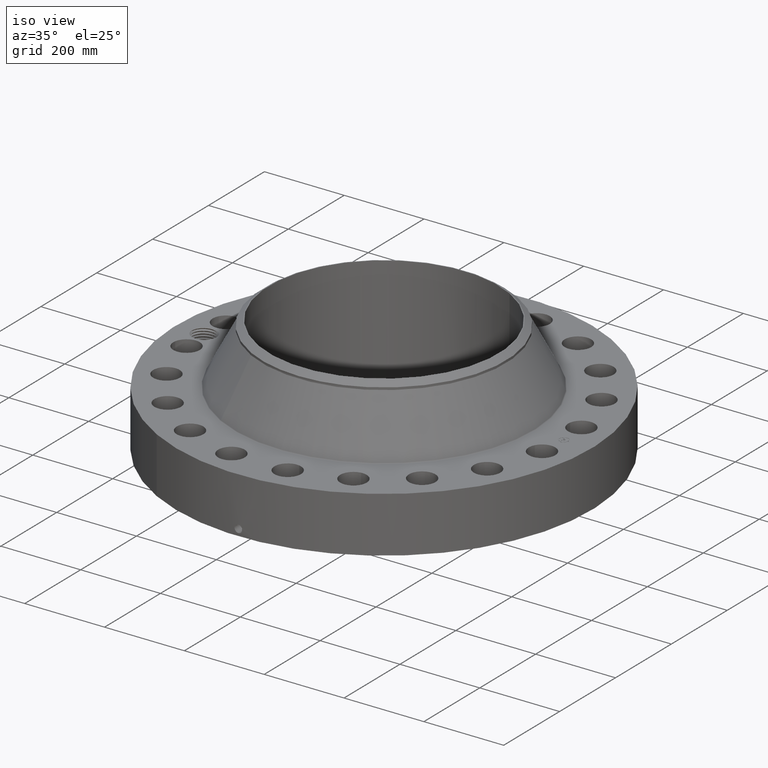
[diagram: clean part render]
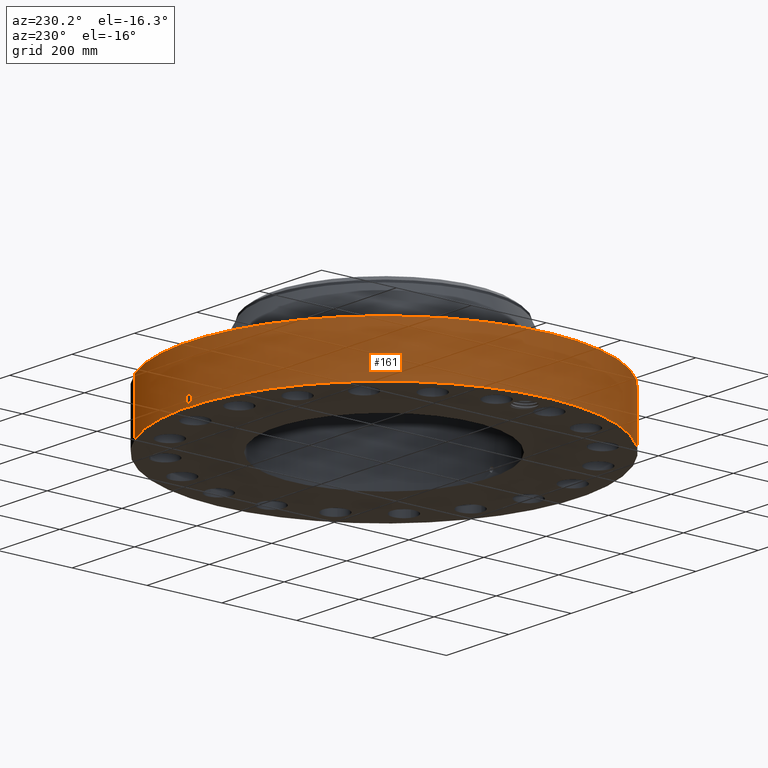
[diagram: tour spotlight — one face highlighted and labeled with its STEP entity id]
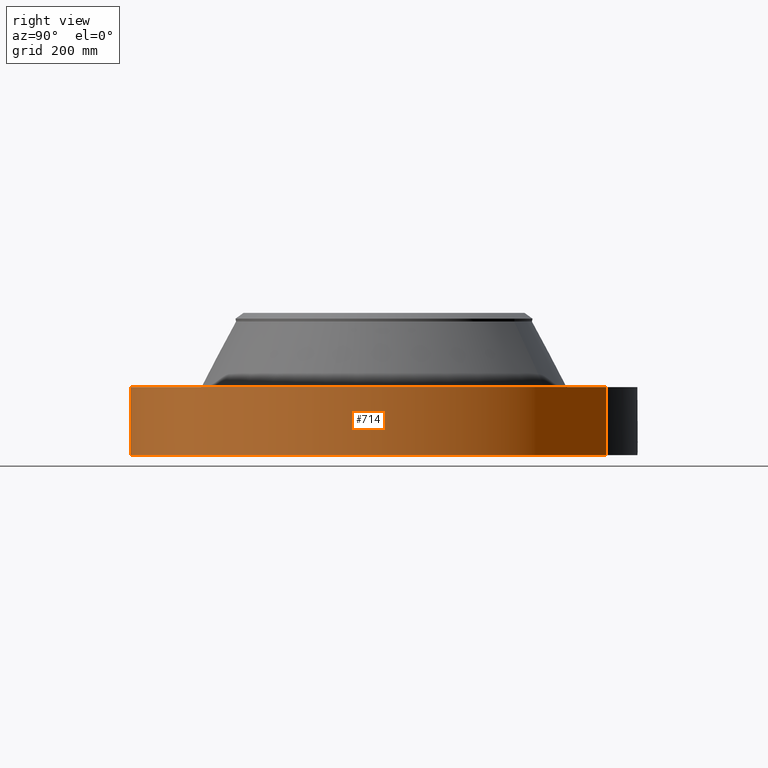
[diagram: tour spotlight — one face highlighted and labeled with its STEP entity id]
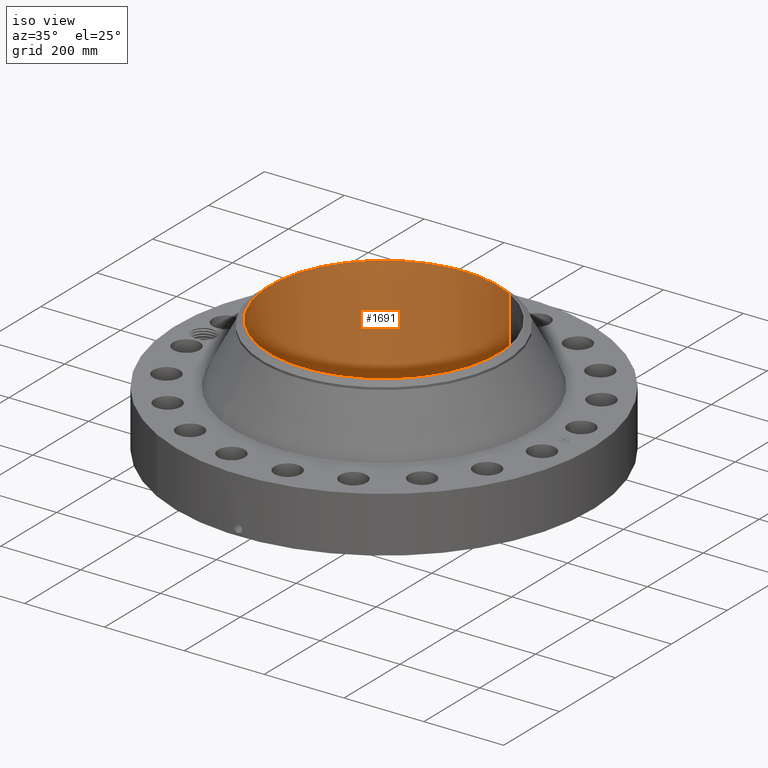
[diagram: tour spotlight — one face highlighted and labeled with its STEP entity id]
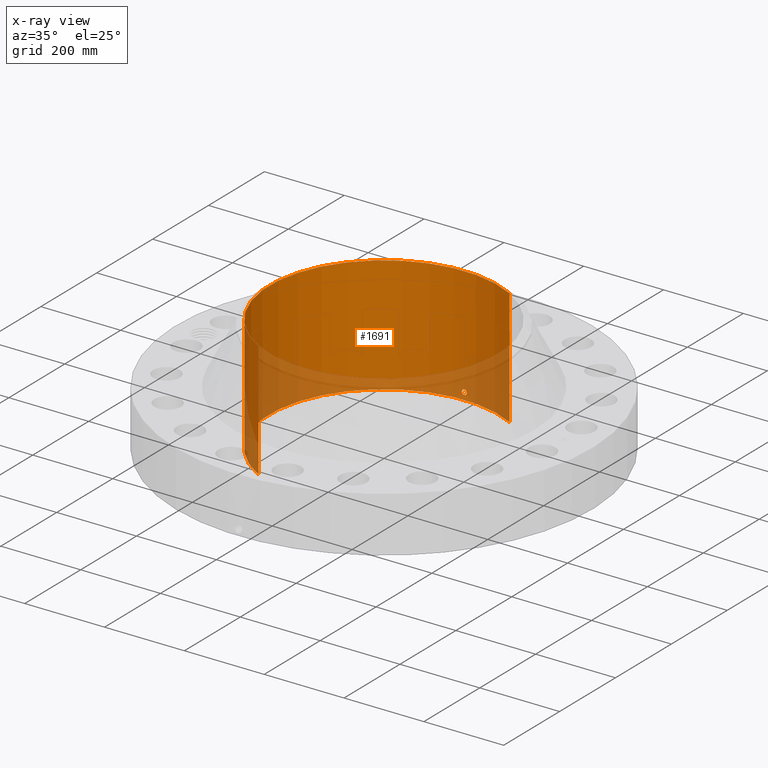
[diagram: x-ray of the same camera — body ghosted, this tour face saturated]
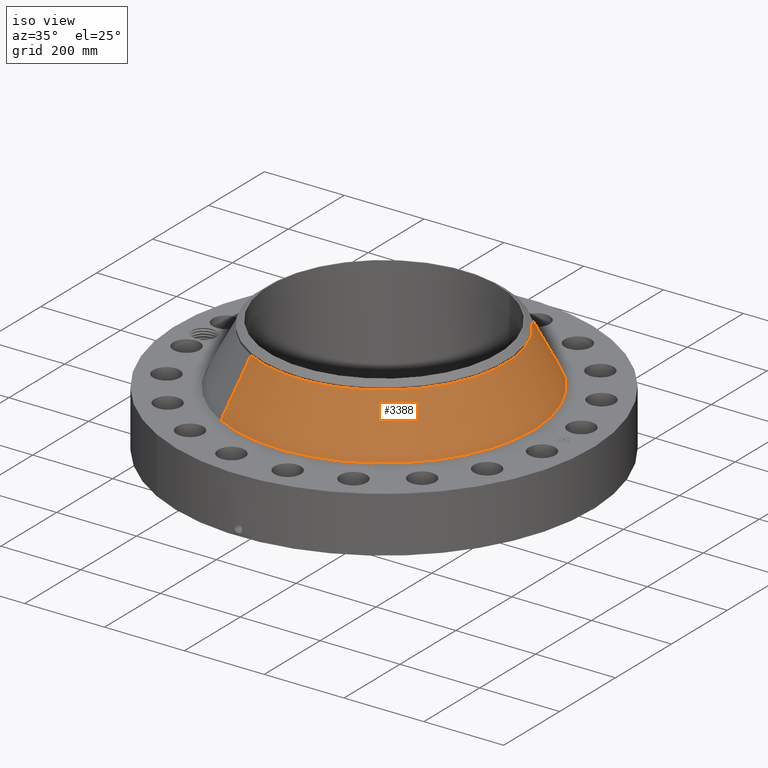
[diagram: tour spotlight — one face highlighted and labeled with its STEP entity id]
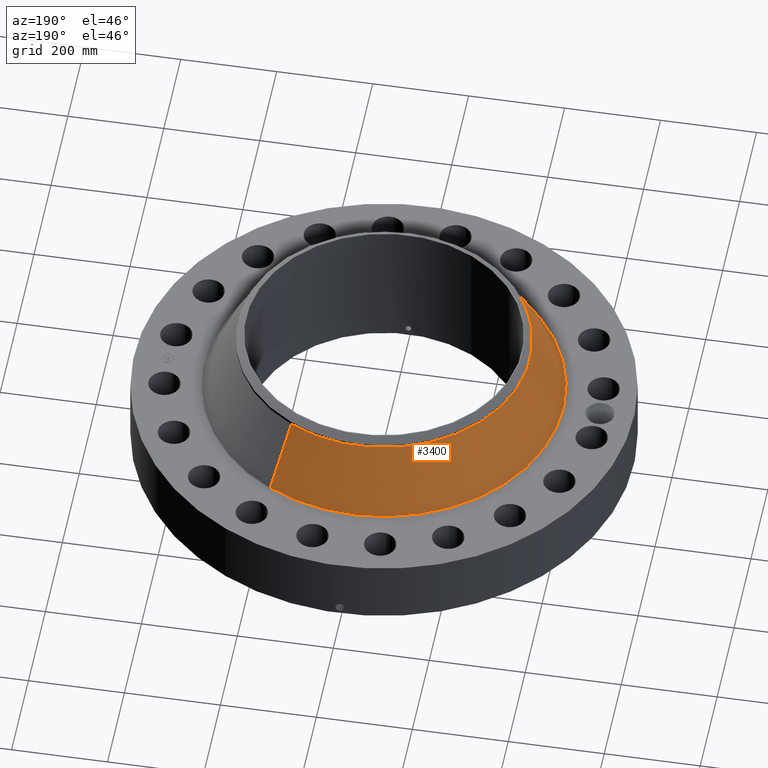
[diagram: tour spotlight — one face highlighted and labeled with its STEP entity id]
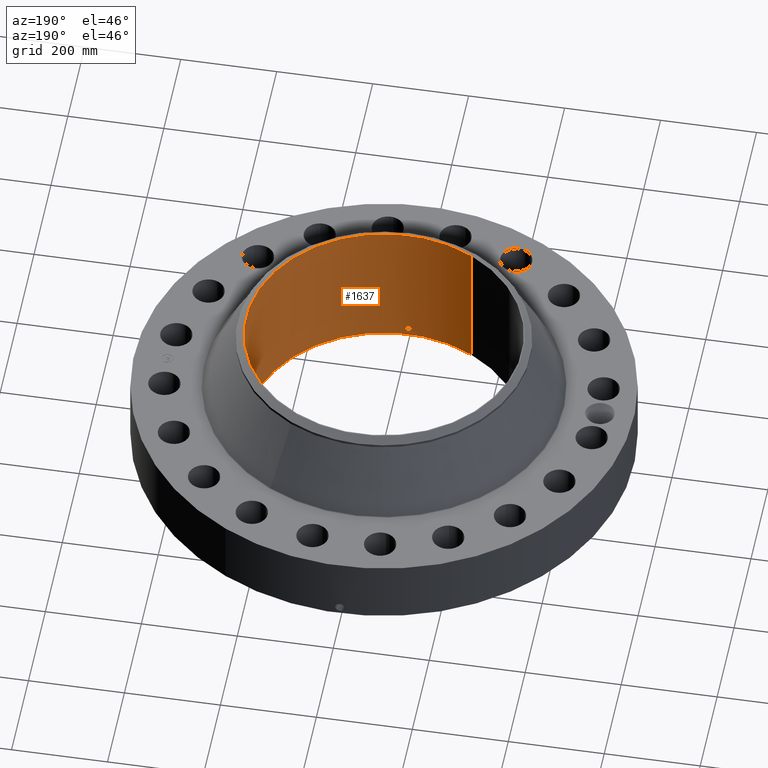
[diagram: tour spotlight — one face highlighted and labeled with its STEP entity id]
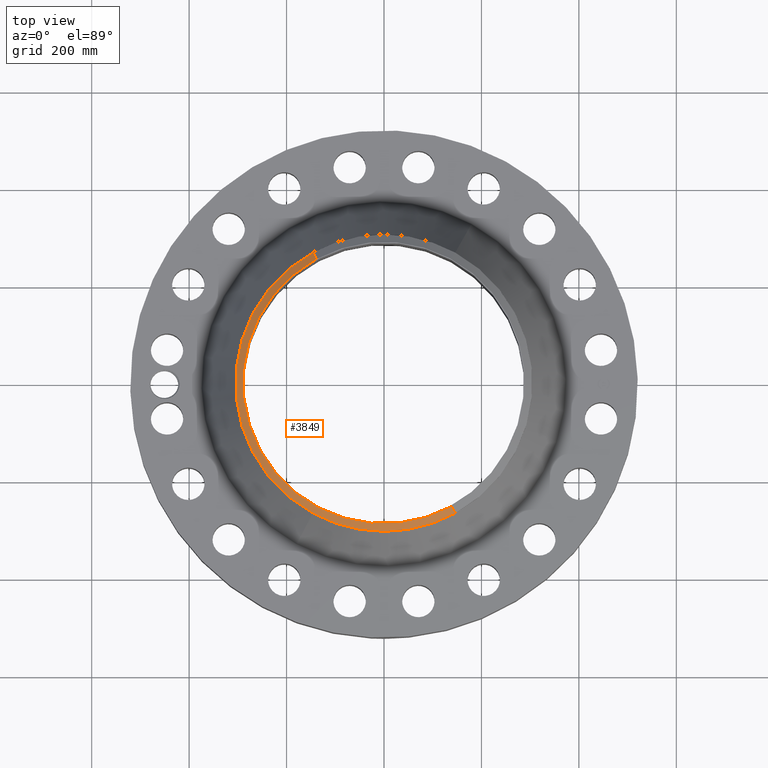
[diagram: tour spotlight — one face highlighted and labeled with its STEP entity id]
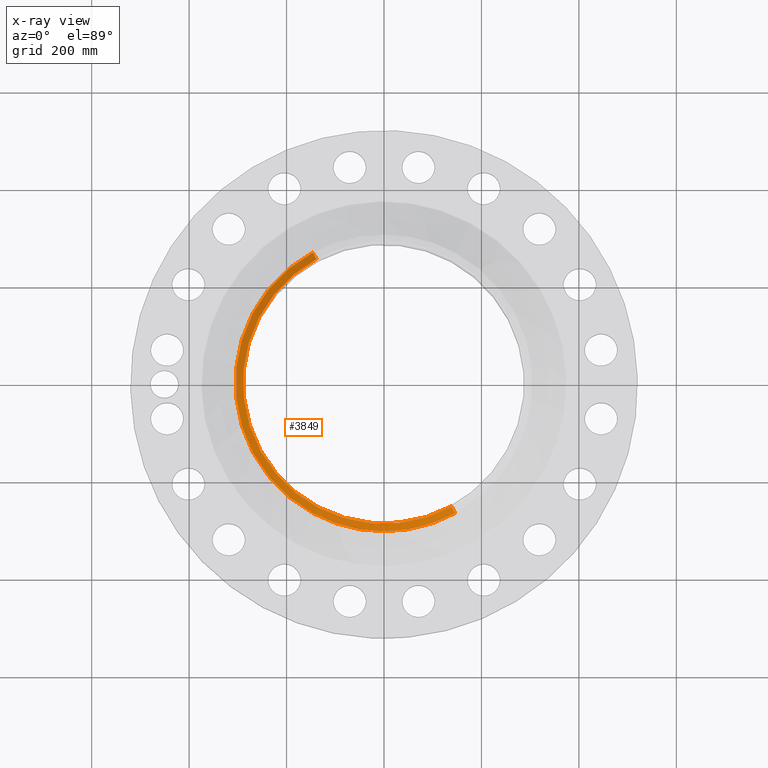
[diagram: x-ray of the same camera — body ghosted, this tour face saturated]
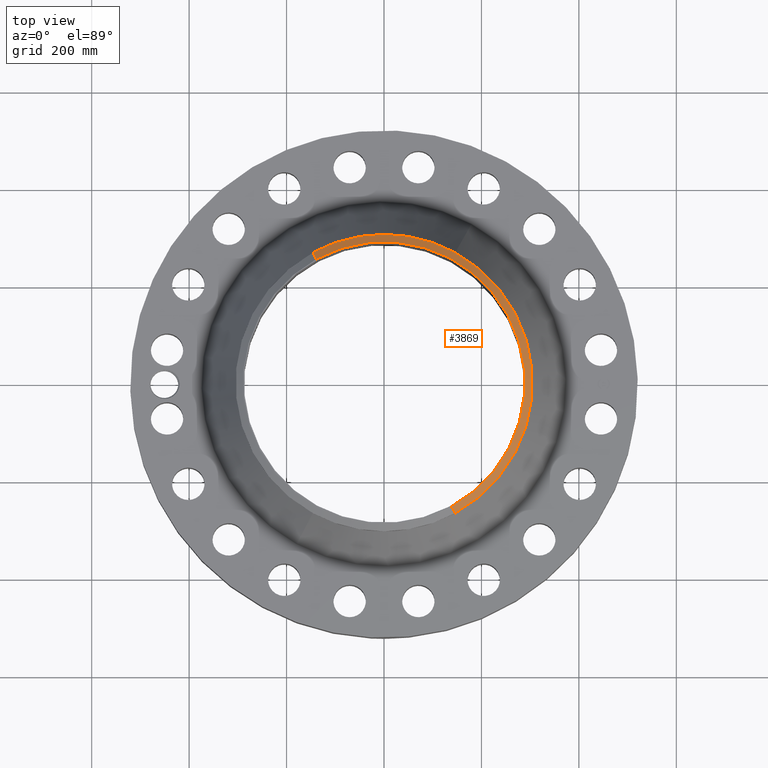
[diagram: tour spotlight — one face highlighted and labeled with its STEP entity id]
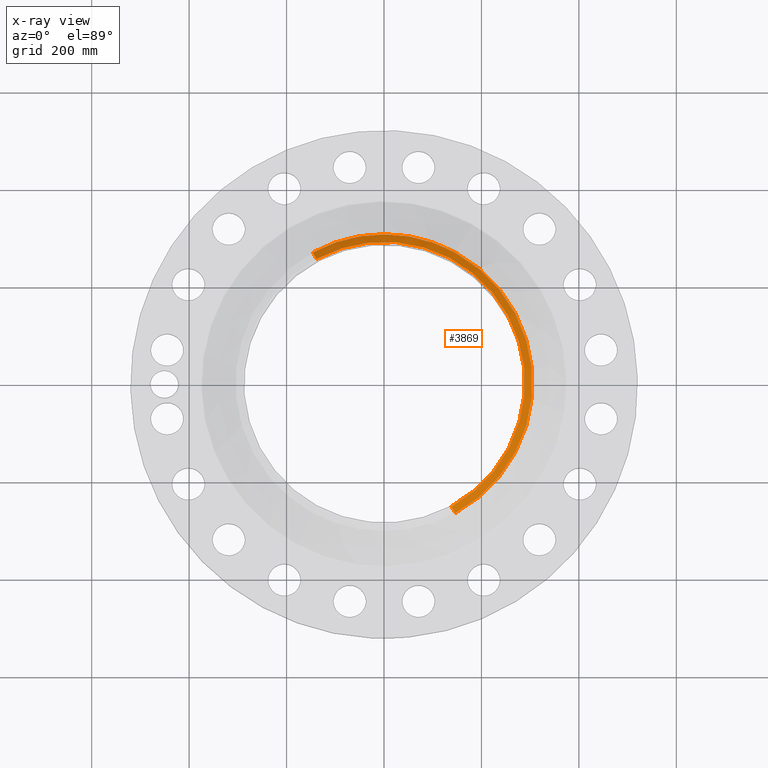
[diagram: x-ray of the same camera — body ghosted, this tour face saturated]
A machine part: a face-by-face anatomy tour. The part has 832 B-rep faces; the first image is the clean iso view, then the 8 largest visible faces are spotlighted one at a time (largest first), each with its STEP entity span.

Face 1 — auxiliary view, entity #161. In plain terms, the highlighted cylindrical surface (partial cylindrical patch) has radius 520.7 mm, axis along (0, 0, -1).
Definition (entity closure, byte-faithful):
#38=AXIS2_PLACEMENT_3D('Cylinder Axis2P3D',#35,#36,#37) ;
#42=AXIS2_PLACEMENT_3D('Circle Axis2P3D',#40,#41,$) ;
#58=AXIS2_PLACEMENT_3D('Circle Axis2P3D',#56,#57,$) ;
#35=CARTESIAN_POINT('Axis2P3D Location',(0.,0.,6.00000000002)) ;
#40=CARTESIAN_POINT('Axis2P3D Location',(0.,0.,0.250000000001)) ;
#44=CARTESIAN_POINT('Vertex',(-9.82822354143,-17.9904425188,0.250000000001)) ;
#46=CARTESIAN_POINT('Vertex',(9.82822354143,17.9904425188,0.250000000001)) ;
#49=CARTESIAN_POINT('Line Origine',(-9.82822354143,-17.9904425188,3.00000000001)) ;
#53=CARTESIAN_POINT('Vertex',(-9.82822354143,-17.9904425188,5.75000000002)) ;
#56=CARTESIAN_POINT('Axis2P3D Location',(0.,0.,5.75000000002)) ;
#60=CARTESIAN_POINT('Vertex',(9.82822354143,17.9904425188,5.75000000002)) ;
#63=CARTESIAN_POINT('Line Origine',(9.82822354143,17.9904425188,3.00000000001)) ;
#75=CARTESIAN_POINT('Control Point',(-0.00071582491992,20.4999999876,1.29411846189)) ;
#76=CARTESIAN_POINT('Control Point',(-0.0186798988387,20.4999993603,1.29408219879)) ;
#77=CARTESIAN_POINT('Control Point',(-0.0366408865818,20.4999749398,1.29267553264)) ;
#78=CARTESIAN_POINT('Control Point',(-0.0543914150096,20.4999278432,1.28991485039)) ;
#79=CARTESIAN_POINT('Vertex',(-0.000715562181719,20.4999999876,1.29411851096)) ;
#81=CARTESIAN_POINT('Vertex',(-0.0543830135546,20.4999281149,1.2899161742)) ;
#85=CARTESIAN_POINT('Control Point',(-0.0543829213643,20.4999278658,1.28991563747)) ;
#86=CARTESIAN_POINT('Control Point',(-0.0951616266523,20.4998196866,1.28563231921)) ;
#87=CARTESIAN_POINT('Control Point',(-0.13534104883,20.4995867329,1.27394936522)) ;
#88=CARTESIAN_POINT('Control Point',(-0.172399363986,20.4992750716,1.2556052783)) ;
#89=CARTESIAN_POINT('Vertex',(-0.172399363986,20.4992750716,1.2556052783)) ;
#93=CARTESIAN_POINT('Control Point',(-0.0312902795807,20.49997612,0.531210006069)) ;
#94=CARTESIAN_POINT('Control Point',(-0.0966447373758,20.4998763658,0.539468586518)) ;
#95=CARTESIAN_POINT('Control Point',(-0.159961112001,20.4995192822,0.561264966804)) ;
#96=CARTESIAN_POINT('Control Point',(-0.217369021163,20.4989412572,0.595973103598)) ;
#97=CARTESIAN_POINT('Control Point',(-0.29324941673,20.4979534264,0.666840520591)) ;
#98=CARTESIAN_POINT('Control Point',(-0.342132237073,20.4971543823,0.755737033838)) ;
#99=CARTESIAN_POINT('Control Point',(-0.356013076179,20.4969122592,0.789915831964)) ;
#100=CARTESIAN_POINT('Control Point',(-0.376680669336,20.4965418285,0.864782817953)) ;
#101=CARTESIAN_POINT('Control Point',(-0.378563151731,20.4965032415,0.942006460963)) ;
#102=CARTESIAN_POINT('Control Point',(-0.374228597209,20.4965852529,0.98252250661)) ;
#103=CARTESIAN_POINT('Control Point',(-0.351649343215,20.4970011659,1.0755763128)) ;
#104=CARTESIAN_POINT('Control Point',(-0.301689779456,20.4978137591,1.15731709951)) ;
#105=CARTESIAN_POINT('Control Point',(-0.264535921836,20.4983582547,1.19854416906)) ;
#106=CARTESIAN_POINT('Control Point',(-0.220645333616,20.4988693219,1.23172323828)) ;
#107=CARTESIAN_POINT('Control Point',(-0.172399363986,20.4992750716,1.2556052783)) ;
#108=CARTESIAN_POINT('Vertex',(-0.0312902795807,20.49997612,0.531210006069)) ;
#112=CARTESIAN_POINT('Control Point',(-0.0312902795807,20.49997612,0.531210006069)) ;
#113=CARTESIAN_POINT('Control Point',(-0.0208557163598,20.4999920469,0.53087758659)) ;
#114=CARTESIAN_POINT('Control Point',(-0.0104125810733,20.5000000015,0.530932657293)) ;
#115=CARTESIAN_POINT('Control Point',(2.72878352991E-006,20.5000000001,0.531374667806)) ;
#116=CARTESIAN_POINT('Vertex',(2.72878354327E-006,20.5000000001,0.531374667806)) ;
#120=CARTESIAN_POINT('Control Point',(0.192400539603,20.4990971029,0.587824630105)) ;
#121=CARTESIAN_POINT('Control Point',(0.14891900698,20.4995052121,0.562282976667)) ;
#122=CARTESIAN_POINT('Control Point',(0.101101430043,20.4998316412,0.543864645033)) ;
#123=CARTESIAN_POINT('Control Point',(0.0508003981182,20.4999999933,0.533530448657)) ;
#124=CARTESIAN_POINT('Control Point',(2.72878352992E-006,20.5000000001,0.531374667806)) ;
#125=CARTESIAN_POINT('Vertex',(0.192400539603,20.4990971029,0.587824630105)) ;
#129=CARTESIAN_POINT('Control Point',(0.192400539603,20.4990971029,0.587824630105)) ;
#130=CARTESIAN_POINT('Control Point',(0.249071407767,20.4985652012,0.621113879394)) ;
#131=CARTESIAN_POINT('Control Point',(0.298856124725,20.4979020771,0.665746733239)) ;
#132=CARTESIAN_POINT('Control Point',(0.338594358579,20.4972324708,0.720056342197)) ;
#133=CARTESIAN_POINT('Control Point',(0.382272589413,20.4964425308,0.818451178306)) ;
#134=CARTESIAN_POINT('Control Point',(0.390437966453,20.4962805539,0.923716802145)) ;
#135=CARTESIAN_POINT('Control Point',(0.388179203015,20.4963247584,0.963970355938)) ;
#136=CARTESIAN_POINT('Control Point',(0.373782313563,20.4966014868,1.0389171264)) ;
#137=CARTESIAN_POINT('Control Point',(0.341452980353,20.4971656869,1.1073659544)) ;
#138=CARTESIAN_POINT('Control Point',(0.322315267269,20.49748267,1.13775235197)) ;
#139=CARTESIAN_POINT('Control Point',(0.260878639325,20.4984122402,1.21343882712)) ;
#140=CARTESIAN_POINT('Control Point',(0.178311193951,20.4993329751,1.26595615748)) ;
#141=CARTESIAN_POINT('Control Point',(0.120176225171,20.4997832671,1.28775569497)) ;
#142=CARTESIAN_POINT('Control Point',(0.059613956241,20.5000000753,1.29707708315)) ;
#143=CARTESIAN_POINT('Control Point',(-2.58579355696E-005,20.5000000001,1.29415298429)) ;
#144=CARTESIAN_POINT('Vertex',(-2.58579355513E-005,20.5000000001,1.29415298429)) ;
#148=CARTESIAN_POINT('Control Point',(-0.000715562172274,20.4999999876,1.29411851094)) ;
#149=CARTESIAN_POINT('Control Point',(-0.000370734753892,20.4999999996,1.29413607521)) ;
#150=CARTESIAN_POINT('Control Point',(-2.58579403072E-005,20.5000000001,1.29415298429)) ;
#36=DIRECTION('Axis2P3D Direction',(0.,0.,-0.0393700787402)) ;
#37=DIRECTION('Axis2P3D XDirection',(0.0188750212049,0.0345504945626,0.)) ;
#41=DIRECTION('Axis2P3D Direction',(0.,0.,-0.0393700787402)) ;
#50=DIRECTION('Vector Direction',(0.,0.,-0.0393700787402)) ;
#57=DIRECTION('Axis2P3D Direction',(0.,0.,-0.0393700787402)) ;
#64=DIRECTION('Vector Direction',(0.,0.,-0.0393700787402)) ;
#51=VECTOR('Line Direction',#50,0.0393700787402) ;
#65=VECTOR('Line Direction',#64,0.0393700787402) ;
#69=ORIENTED_EDGE('',*,*,#48,.F.) ;
#70=ORIENTED_EDGE('',*,*,#55,.T.) ;
#71=ORIENTED_EDGE('',*,*,#62,.T.) ;
#72=ORIENTED_EDGE('',*,*,#67,.F.) ;
#153=ORIENTED_EDGE('',*,*,#83,.T.) ;
#154=ORIENTED_EDGE('',*,*,#91,.T.) ;
#155=ORIENTED_EDGE('',*,*,#110,.F.) ;
#156=ORIENTED_EDGE('',*,*,#118,.T.) ;
#157=ORIENTED_EDGE('',*,*,#127,.F.) ;
#158=ORIENTED_EDGE('',*,*,#146,.T.) ;
#159=ORIENTED_EDGE('',*,*,#151,.F.) ;
#160=FACE_BOUND('',#152,.T.) ;
#161=ADVANCED_FACE('PartBody',(#73,#160),#39,.T.) ;
#74=B_SPLINE_CURVE_WITH_KNOTS('',3,(#75,#76,#77,#78),.UNSPECIFIED.,.F.,.U.,(4,4),(34.6169402449,36.6098830403),.UNSPECIFIED.) ;
#84=B_SPLINE_CURVE_WITH_KNOTS('',3,(#85,#86,#87,#88),.UNSPECIFIED.,.F.,.U.,(4,4),(0.,4.60729360244),.UNSPECIFIED.) ;
#92=B_SPLINE_CURVE_WITH_KNOTS('',5,(#93,#94,#95,#96,#97,#98,#99,#100,#101,#102,#103,#104,#105,#106,#107),.UNSPECIFIED.,.F.,.U.,(6,3,3,3,6),(0.,11.4480544507,18.0008782138,25.3255866263,35.3225936746),.UNSPECIFIED.) ;
#111=B_SPLINE_CURVE_WITH_KNOTS('',3,(#112,#113,#114,#115),.UNSPECIFIED.,.F.,.U.,(4,4),(0.,1.08852170115),.UNSPECIFIED.) ;
#119=B_SPLINE_CURVE_WITH_KNOTS('',4,(#120,#121,#122,#123,#124),.UNSPECIFIED.,.F.,.U.,(5,5),(0.,7.07860081035),.UNSPECIFIED.) ;
#128=B_SPLINE_CURVE_WITH_KNOTS('',5,(#129,#130,#131,#132,#133,#134,#135,#136,#137,#138,#139,#140,#141,#142,#143),.UNSPECIFIED.,.F.,.U.,(6,3,3,3,6),(0.,11.5322075277,18.646911992,25.0825583218,36.2304778635),.UNSPECIFIED.) ;
#147=B_SPLINE_CURVE_WITH_KNOTS('',2,(#148,#149,#150),.UNSPECIFIED.,.F.,.U.,(3,3),(1.0138716213,1.03965747719),.UNSPECIFIED.) ;
#43=CIRCLE('generated circle',#42,20.5000000001) ;
#59=CIRCLE('generated circle',#58,20.5000000001) ;
#39=CYLINDRICAL_SURFACE('generated cylinder',#38,20.5000000001) ;
#48=EDGE_CURVE('',#45,#47,#43,.T.) ;
#55=EDGE_CURVE('',#45,#54,#52,.F.) ;
#62=EDGE_CURVE('',#54,#61,#59,.T.) ;
#67=EDGE_CURVE('',#47,#61,#66,.F.) ;
#83=EDGE_CURVE('',#80,#82,#74,.T.) ;
#91=EDGE_CURVE('',#82,#90,#84,.T.) ;
#110=EDGE_CURVE('',#109,#90,#92,.T.) ;
#118=EDGE_CURVE('',#109,#117,#111,.T.) ;
#127=EDGE_CURVE('',#126,#117,#119,.T.) ;
#146=EDGE_CURVE('',#126,#145,#128,.T.) ;
#151=EDGE_CURVE('',#80,#145,#147,.T.) ;
#68=EDGE_LOOP('',(#69,#70,#71,#72)) ;
#152=EDGE_LOOP('',(#153,#154,#155,#156,#157,#158,#159)) ;
#73=FACE_OUTER_BOUND('',#68,.T.) ;
#52=LINE('Line',#49,#51) ;
#66=LINE('Line',#63,#65) ;
#45=VERTEX_POINT('',#44) ;
#47=VERTEX_POINT('',#46) ;
#54=VERTEX_POINT('',#53) ;
#61=VERTEX_POINT('',#60) ;
#80=VERTEX_POINT('',#79) ;
#82=VERTEX_POINT('',#81) ;
#90=VERTEX_POINT('',#89) ;
#109=VERTEX_POINT('',#108) ;
#117=VERTEX_POINT('',#116) ;
#126=VERTEX_POINT('',#125) ;
#145=VERTEX_POINT('',#144) ;

Face 2 — right view, entity #714. In plain terms, the highlighted cylindrical surface (partial cylindrical patch) has radius 520.7 mm, axis along (0, 0, -1).
Definition (entity closure, byte-faithful):
#38=AXIS2_PLACEMENT_3D('Cylinder Axis2P3D',#35,#36,#37) ;
#169=AXIS2_PLACEMENT_3D('Circle Axis2P3D',#167,#168,$) ;
#618=AXIS2_PLACEMENT_3D('Circle Axis2P3D',#616,#617,$) ;
#35=CARTESIAN_POINT('Axis2P3D Location',(0.,0.,6.00000000002)) ;
#44=CARTESIAN_POINT('Vertex',(-9.82822354143,-17.9904425188,0.250000000001)) ;
#46=CARTESIAN_POINT('Vertex',(9.82822354143,17.9904425188,0.250000000001)) ;
#49=CARTESIAN_POINT('Line Origine',(-9.82822354143,-17.9904425188,3.00000000001)) ;
#53=CARTESIAN_POINT('Vertex',(-9.82822354143,-17.9904425188,5.75000000002)) ;
#60=CARTESIAN_POINT('Vertex',(9.82822354143,17.9904425188,5.75000000002)) ;
#63=CARTESIAN_POINT('Line Origine',(9.82822354143,17.9904425188,3.00000000001)) ;
#167=CARTESIAN_POINT('Axis2P3D Location',(0.,0.,0.250000000001)) ;
#616=CARTESIAN_POINT('Axis2P3D Location',(0.,0.,5.75000000002)) ;
#628=CARTESIAN_POINT('Control Point',(0.000715824918333,-20.4999999876,1.29411846189)) ;
#629=CARTESIAN_POINT('Control Point',(0.0186798988338,-20.4999993603,1.29408219879)) ;
#630=CARTESIAN_POINT('Control Point',(0.036640886584,-20.4999749398,1.29267553264)) ;
#631=CARTESIAN_POINT('Control Point',(0.0543914150088,-20.4999278432,1.28991485039)) ;
#632=CARTESIAN_POINT('Vertex',(0.000715562181721,-20.4999999876,1.29411851096)) ;
#634=CARTESIAN_POINT('Vertex',(0.0543830135546,-20.4999281149,1.2899161742)) ;
#638=CARTESIAN_POINT('Control Point',(0.0543829213644,-20.4999278658,1.28991563747)) ;
#639=CARTESIAN_POINT('Control Point',(0.0951616266476,-20.4998196866,1.28563231921)) ;
#640=CARTESIAN_POINT('Control Point',(0.135341048835,-20.4995867329,1.27394936521)) ;
#641=CARTESIAN_POINT('Control Point',(0.172399363986,-20.4992750716,1.2556052783)) ;
#642=CARTESIAN_POINT('Vertex',(0.172399363986,-20.4992750716,1.2556052783)) ;
#646=CARTESIAN_POINT('Control Point',(0.0312902795807,-20.49997612,0.531210006069)) ;
#647=CARTESIAN_POINT('Control Point',(0.096644737529,-20.4998763658,0.539468586538)) ;
#648=CARTESIAN_POINT('Control Point',(0.159961112298,-20.4995192822,0.561264966906)) ;
#649=CARTESIAN_POINT('Control Point',(0.217369021497,-20.4989412571,0.595973103792)) ;
#650=CARTESIAN_POINT('Control Point',(0.293249417027,-20.4979534264,0.666840520928)) ;
#651=CARTESIAN_POINT('Control Point',(0.34213223727,-20.4971543823,0.755737034296)) ;
#652=CARTESIAN_POINT('Control Point',(0.35601307645,-20.4969122592,0.789915832768)) ;
#653=CARTESIAN_POINT('Control Point',(0.376680669457,-20.4965418285,0.864782818789)) ;
#654=CARTESIAN_POINT('Control Point',(0.378563151699,-20.4965032415,0.942006461801)) ;
#655=CARTESIAN_POINT('Control Point',(0.374228597143,-20.4965852529,0.982522507108)) ;
#656=CARTESIAN_POINT('Control Point',(0.351649343034,-20.4970011659,1.07557631317)) ;
#657=CARTESIAN_POINT('Control Point',(0.301689779233,-20.4978137591,1.15731709974)) ;
#658=CARTESIAN_POINT('Control Point',(0.264535921553,-20.4983582547,1.19854416927)) ;
#659=CARTESIAN_POINT('Control Point',(0.220645333461,-20.498869322,1.23172323836)) ;
#660=CARTESIAN_POINT('Control Point',(0.172399363986,-20.4992750716,1.2556052783)) ;
#661=CARTESIAN_POINT('Vertex',(0.0312902795807,-20.49997612,0.531210006069)) ;
#665=CARTESIAN_POINT('Control Point',(0.0312902795807,-20.49997612,0.531210006069)) ;
#666=CARTESIAN_POINT('Control Point',(0.0208557163598,-20.4999920469,0.53087758659)) ;
#667=CARTESIAN_POINT('Control Point',(0.0104125810733,-20.5000000015,0.530932657293)) ;
#668=CARTESIAN_POINT('Control Point',(-2.72878356883E-006,-20.5000000001,0.531374667806)) ;
#669=CARTESIAN_POINT('Vertex',(-2.72878354576E-006,-20.5000000001,0.531374667806)) ;
#673=CARTESIAN_POINT('Control Point',(-0.192400539603,-20.4990971029,0.587824630105)) ;
#674=CARTESIAN_POINT('Control Point',(-0.148919006982,-20.4995052121,0.562282976668)) ;
#675=CARTESIAN_POINT('Control Point',(-0.101101430041,-20.4998316412,0.543864645032)) ;
#676=CARTESIAN_POINT('Control Point',(-0.0508003981159,-20.4999999933,0.533530448656)) ;
#677=CARTESIAN_POINT('Control Point',(-2.72878356883E-006,-20.5000000001,0.531374667806)) ;
#678=CARTESIAN_POINT('Vertex',(-0.192400539603,-20.4990971029,0.587824630105)) ;
#682=CARTESIAN_POINT('Control Point',(-0.192400539603,-20.4990971029,0.587824630105)) ;
#683=CARTESIAN_POINT('Control Point',(-0.249071407721,-20.4985652012,0.621113879367)) ;
#684=CARTESIAN_POINT('Control Point',(-0.298856124645,-20.4979020771,0.665746733168)) ;
#685=CARTESIAN_POINT('Control Point',(-0.338594358622,-20.4972324708,0.720056342296)) ;
#686=CARTESIAN_POINT('Control Point',(-0.382272589314,-20.4964425308,0.818451178124)) ;
#687=CARTESIAN_POINT('Control Point',(-0.390437966414,-20.4962805539,0.923716801644)) ;
#688=CARTESIAN_POINT('Control Point',(-0.388179202919,-20.4963247584,0.963970356433)) ;
#689=CARTESIAN_POINT('Control Point',(-0.373782313489,-20.4966014868,1.03891712646)) ;
#690=CARTESIAN_POINT('Control Point',(-0.341452980495,-20.4971656869,1.1073659541)) ;
#691=CARTESIAN_POINT('Control Point',(-0.322315267058,-20.49748267,1.13775235223)) ;
#692=CARTESIAN_POINT('Control Point',(-0.260878639183,-20.4984122402,1.21343882722)) ;
#693=CARTESIAN_POINT('Control Point',(-0.178311193944,-20.4993329751,1.26595615748)) ;
#694=CARTESIAN_POINT('Control Point',(-0.120176225174,-20.4997832671,1.28775569497)) ;
#695=CARTESIAN_POINT('Control Point',(-0.0596139562427,-20.5000000753,1.29707708315)) ;
#696=CARTESIAN_POINT('Control Point',(2.58579355307E-005,-20.5000000001,1.29415298429)) ;
#697=CARTESIAN_POINT('Vertex',(2.58579355488E-005,-20.5000000001,1.29415298429)) ;
#701=CARTESIAN_POINT('Control Point',(0.000715562172311,-20.4999999876,1.29411851094)) ;
#702=CARTESIAN_POINT('Control Point',(0.000370734753917,-20.4999999996,1.29413607521)) ;
#703=CARTESIAN_POINT('Control Point',(2.58579403196E-005,-20.5000000001,1.29415298429)) ;
#36=DIRECTION('Axis2P3D Direction',(0.,0.,-0.0393700787402)) ;
#37=DIRECTION('Axis2P3D XDirection',(0.0188750212049,0.0345504945626,0.)) ;
#50=DIRECTION('Vector Direction',(0.,0.,-0.0393700787402)) ;
#64=DIRECTION('Vector Direction',(0.,0.,-0.0393700787402)) ;
#168=DIRECTION('Axis2P3D Direction',(0.,0.,-0.0393700787402)) ;
#617=DIRECTION('Axis2P3D Direction',(0.,0.,-0.0393700787402)) ;
#51=VECTOR('Line Direction',#50,0.0393700787402) ;
#65=VECTOR('Line Direction',#64,0.0393700787402) ;
#622=ORIENTED_EDGE('',*,*,#171,.F.) ;
#623=ORIENTED_EDGE('',*,*,#67,.T.) ;
#624=ORIENTED_EDGE('',*,*,#620,.T.) ;
#625=ORIENTED_EDGE('',*,*,#55,.F.) ;
#706=ORIENTED_EDGE('',*,*,#636,.T.) ;
#707=ORIENTED_EDGE('',*,*,#644,.T.) ;
#708=ORIENTED_EDGE('',*,*,#663,.F.) ;
#709=ORIENTED_EDGE('',*,*,#671,.T.) ;
#710=ORIENTED_EDGE('',*,*,#680,.F.) ;
#711=ORIENTED_EDGE('',*,*,#699,.T.) ;
#712=ORIENTED_EDGE('',*,*,#704,.F.) ;
#713=FACE_BOUND('',#705,.T.) ;
#714=ADVANCED_FACE('PartBody',(#626,#713),#39,.T.) ;
#627=B_SPLINE_CURVE_WITH_KNOTS('',3,(#628,#629,#630,#631),.UNSPECIFIED.,.F.,.U.,(4,4),(34.6169402492,36.6098830449),.UNSPECIFIED.) ;
#637=B_SPLINE_CURVE_WITH_KNOTS('',3,(#638,#639,#640,#641),.UNSPECIFIED.,.F.,.U.,(4,4),(0.,4.6072936019),.UNSPECIFIED.) ;
#645=B_SPLINE_CURVE_WITH_KNOTS('',5,(#646,#647,#648,#649,#650,#651,#652,#653,#654,#655,#656,#657,#658,#659,#660),.UNSPECIFIED.,.F.,.U.,(6,3,3,3,6),(0.,11.4480544775,18.0008782253,25.3255866529,35.3225936691),.UNSPECIFIED.) ;
#664=B_SPLINE_CURVE_WITH_KNOTS('',3,(#665,#666,#667,#668),.UNSPECIFIED.,.F.,.U.,(4,4),(0.,1.08852170115),.UNSPECIFIED.) ;
#672=B_SPLINE_CURVE_WITH_KNOTS('',4,(#673,#674,#675,#676,#677),.UNSPECIFIED.,.F.,.U.,(5,5),(0.,7.07860081002),.UNSPECIFIED.) ;
#681=B_SPLINE_CURVE_WITH_KNOTS('',5,(#682,#683,#684,#685,#686,#687,#688,#689,#690,#691,#692,#693,#694,#695,#696),.UNSPECIFIED.,.F.,.U.,(6,3,3,3,6),(0.,11.5322075185,18.6469119381,25.082558238,36.23047778),.UNSPECIFIED.) ;
#700=B_SPLINE_CURVE_WITH_KNOTS('',2,(#701,#702,#703),.UNSPECIFIED.,.F.,.U.,(3,3),(1.0138716213,1.03965747719),.UNSPECIFIED.) ;
#170=CIRCLE('generated circle',#169,20.5000000001) ;
#619=CIRCLE('generated circle',#618,20.5000000001) ;
#39=CYLINDRICAL_SURFACE('generated cylinder',#38,20.5000000001) ;
#55=EDGE_CURVE('',#45,#54,#52,.F.) ;
#67=EDGE_CURVE('',#47,#61,#66,.F.) ;
#171=EDGE_CURVE('',#47,#45,#170,.T.) ;
#620=EDGE_CURVE('',#61,#54,#619,.T.) ;
#636=EDGE_CURVE('',#633,#635,#627,.T.) ;
#644=EDGE_CURVE('',#635,#643,#637,.T.) ;
#663=EDGE_CURVE('',#662,#643,#645,.T.) ;
#671=EDGE_CURVE('',#662,#670,#664,.T.) ;
#680=EDGE_CURVE('',#679,#670,#672,.T.) ;
#699=EDGE_CURVE('',#679,#698,#681,.T.) ;
#704=EDGE_CURVE('',#633,#698,#700,.T.) ;
#621=EDGE_LOOP('',(#622,#623,#624,#625)) ;
#705=EDGE_LOOP('',(#706,#707,#708,#709,#710,#711,#712)) ;
#626=FACE_OUTER_BOUND('',#621,.T.) ;
#52=LINE('Line',#49,#51) ;
#66=LINE('Line',#63,#65) ;
#45=VERTEX_POINT('',#44) ;
#47=VERTEX_POINT('',#46) ;
#54=VERTEX_POINT('',#53) ;
#61=VERTEX_POINT('',#60) ;
#633=VERTEX_POINT('',#632) ;
#635=VERTEX_POINT('',#634) ;
#643=VERTEX_POINT('',#642) ;
#662=VERTEX_POINT('',#661) ;
#670=VERTEX_POINT('',#669) ;
#679=VERTEX_POINT('',#678) ;
#698=VERTEX_POINT('',#697) ;

Face 3 — iso view, entity #1691. An x-ray twin of the same camera follows (body ghosted, this face saturated) — the face is partly hidden behind the body. In plain terms, the highlighted cylindrical surface (partial cylindrical patch) has radius 287.325 mm, axis along (0, 0, -1).
Definition (entity closure, byte-faithful):
#266=AXIS2_PLACEMENT_3D('Circle Axis2P3D',#264,#265,$) ;
#1568=AXIS2_PLACEMENT_3D('Cylinder Axis2P3D',#1565,#1566,#1567) ;
#1640=AXIS2_PLACEMENT_3D('Circle Axis2P3D',#1638,#1639,$) ;
#259=CARTESIAN_POINT('Vertex',(5.42326169271,9.92721394014,0.250000000001)) ;
#261=CARTESIAN_POINT('Vertex',(-5.42326169271,-9.92721394014,0.250000000001)) ;
#264=CARTESIAN_POINT('Axis2P3D Location',(0.,0.,0.250000000001)) ;
#1565=CARTESIAN_POINT('Axis2P3D Location',(0.,0.,6.00000000002)) ;
#1574=CARTESIAN_POINT('Vertex',(5.42326169271,9.92721394014,11.75)) ;
#1576=CARTESIAN_POINT('Vertex',(-5.42326169271,-9.92721394014,11.75)) ;
#1579=CARTESIAN_POINT('Line Origine',(5.42326169271,9.92721394014,6.00000000002)) ;
#1584=CARTESIAN_POINT('Line Origine',(-5.42326169271,-9.92721394014,6.00000000002)) ;
#1638=CARTESIAN_POINT('Axis2P3D Location',(0.,0.,11.75)) ;
#1650=CARTESIAN_POINT('Control Point',(0.219395640473,11.3098722165,1.05985638466)) ;
#1651=CARTESIAN_POINT('Control Point',(0.194442717938,11.3103562682,1.10553240298)) ;
#1652=CARTESIAN_POINT('Control Point',(0.15760392948,11.3110020461,1.14471334332)) ;
#1653=CARTESIAN_POINT('Control Point',(0.111104547846,11.3116301275,1.17324454071)) ;
#1654=CARTESIAN_POINT('Control Point',(0.0336685367703,11.3121298317,1.19588328385)) ;
#1655=CARTESIAN_POINT('Control Point',(-0.0446767041976,11.3119571131,1.18805560118)) ;
#1656=CARTESIAN_POINT('Control Point',(-0.0703080519644,11.3118230335,1.18204197647)) ;
#1657=CARTESIAN_POINT('Control Point',(-0.143966159158,11.3112305629,1.15420631027)) ;
#1658=CARTESIAN_POINT('Control Point',(-0.203255044702,11.3102635705,1.09948508965)) ;
#1659=CARTESIAN_POINT('Control Point',(-0.232218016857,11.3096294446,1.05324118855)) ;
#1660=CARTESIAN_POINT('Control Point',(-0.255841932634,11.3091083033,0.975096303467)) ;
#1661=CARTESIAN_POINT('Control Point',(-0.248280257416,11.3092749771,0.8957363549)) ;
#1662=CARTESIAN_POINT('Control Point',(-0.242046540814,11.3094143696,0.869177906278)) ;
#1663=CARTESIAN_POINT('Control Point',(-0.232313923617,11.30962162,0.843790374032)) ;
#1664=CARTESIAN_POINT('Control Point',(-0.219395640473,11.3098722165,0.820143615352)) ;
#1665=CARTESIAN_POINT('Vertex',(0.219395640473,11.3098722165,1.05985638466)) ;
#1667=CARTESIAN_POINT('Vertex',(-0.219395640473,11.3098722165,0.820143615352)) ;
#1671=CARTESIAN_POINT('Control Point',(-0.219395640473,11.3098722165,0.820143615352)) ;
#1672=CARTESIAN_POINT('Control Point',(-0.194442717957,11.3103562682,0.774467597065)) ;
#1673=CARTESIAN_POINT('Control Point',(-0.157603929536,11.3110020461,0.735286656751)) ;
#1674=CARTESIAN_POINT('Control Point',(-0.111104547755,11.3116301275,0.706755459267)) ;
#1675=CARTESIAN_POINT('Control Point',(-0.033668536689,11.3121298317,0.684116716151)) ;
#1676=CARTESIAN_POINT('Control Point',(0.0446767042677,11.3119571131,0.691944398835)) ;
#1677=CARTESIAN_POINT('Control Point',(0.0703080519245,11.3118230335,0.697958023524)) ;
#1678=CARTESIAN_POINT('Control Point',(0.143966159118,11.3112305629,0.725793689713)) ;
#1679=CARTESIAN_POINT('Control Point',(0.203255044663,11.3102635705,0.780514910322)) ;
#1680=CARTESIAN_POINT('Control Point',(0.232218016882,11.3096294446,0.826758811537)) ;
#1681=CARTESIAN_POINT('Control Point',(0.255841932618,11.3091083033,0.904903696537)) ;
#1682=CARTESIAN_POINT('Control Point',(0.248280257423,11.3092749771,0.98426364502)) ;
#1683=CARTESIAN_POINT('Control Point',(0.242046540778,11.3094143696,1.01082209382)) ;
#1684=CARTESIAN_POINT('Control Point',(0.232313923593,11.30962162,1.03620962602)) ;
#1685=CARTESIAN_POINT('Control Point',(0.219395640473,11.3098722165,1.05985638466)) ;
#265=DIRECTION('Axis2P3D Direction',(0.,0.,-0.0393700787402)) ;
#1566=DIRECTION('Axis2P3D Direction',(0.,0.,-0.0393700787402)) ;
#1567=DIRECTION('Axis2P3D XDirection',(-0.0188750212049,-0.0345504945626,0.)) ;
#1580=DIRECTION('Vector Direction',(0.,0.,-0.0393700787402)) ;
#1585=DIRECTION('Vector Direction',(0.,0.,-0.0393700787402)) ;
#1639=DIRECTION('Axis2P3D Direction',(0.,0.,-0.0393700787402)) ;
#1581=VECTOR('Line Direction',#1580,0.0393700787402) ;
#1586=VECTOR('Line Direction',#1585,0.0393700787402) ;
#1644=ORIENTED_EDGE('',*,*,#1642,.F.) ;
#1645=ORIENTED_EDGE('',*,*,#1588,.T.) ;
#1646=ORIENTED_EDGE('',*,*,#268,.T.) ;
#1647=ORIENTED_EDGE('',*,*,#1583,.F.) ;
#1688=ORIENTED_EDGE('',*,*,#1669,.F.) ;
#1689=ORIENTED_EDGE('',*,*,#1686,.F.) ;
#1690=FACE_BOUND('',#1687,.T.) ;
#1691=ADVANCED_FACE('PartBody',(#1648,#1690),#1569,.F.) ;
#1649=B_SPLINE_CURVE_WITH_KNOTS('',5,(#1650,#1651,#1652,#1653,#1654,#1655,#1656,#1657,#1658,#1659,#1660,#1661,#1662,#1663,#1664),.UNSPECIFIED.,.F.,.U.,(6,3,3,3,6),(0.,9.34841004323,14.0230093006,23.3730560586,28.2127860625),.UNSPECIFIED.) ;
#1670=B_SPLINE_CURVE_WITH_KNOTS('',5,(#1671,#1672,#1673,#1674,#1675,#1676,#1677,#1678,#1679,#1680,#1681,#1682,#1683,#1684,#1685),.UNSPECIFIED.,.F.,.U.,(6,3,3,3,6),(0.,9.34841003619,14.0230092987,23.3730560509,28.2127860458),.UNSPECIFIED.) ;
#267=CIRCLE('generated circle',#266,11.312) ;
#1641=CIRCLE('generated circle',#1640,11.312) ;
#1569=CYLINDRICAL_SURFACE('generated cylinder',#1568,11.312) ;
#268=EDGE_CURVE('',#262,#260,#267,.T.) ;
#1583=EDGE_CURVE('',#1575,#260,#1582,.T.) ;
#1588=EDGE_CURVE('',#1577,#262,#1587,.T.) ;
#1642=EDGE_CURVE('',#1577,#1575,#1641,.T.) ;
#1669=EDGE_CURVE('',#1666,#1668,#1649,.T.) ;
#1686=EDGE_CURVE('',#1668,#1666,#1670,.T.) ;
#1643=EDGE_LOOP('',(#1644,#1645,#1646,#1647)) ;
#1687=EDGE_LOOP('',(#1688,#1689)) ;
#1648=FACE_OUTER_BOUND('',#1643,.T.) ;
#1582=LINE('Line',#1579,#1581) ;
#1587=LINE('Line',#1584,#1586) ;
#260=VERTEX_POINT('',#259) ;
#262=VERTEX_POINT('',#261) ;
#1575=VERTEX_POINT('',#1574) ;
#1577=VERTEX_POINT('',#1576) ;
#1666=VERTEX_POINT('',#1665) ;
#1668=VERTEX_POINT('',#1667) ;

Face 4 — iso view, entity #3388. In plain terms, the highlighted conical surface has half-angle 27.44 deg.
Definition (entity closure, byte-faithful):
#2608=AXIS2_PLACEMENT_3D('Circle Axis2P3D',#2606,#2607,$) ;
#3361=AXIS2_PLACEMENT_3D('Cone Axis2P3D',#3358,#3359,#3360) ;
#3372=AXIS2_PLACEMENT_3D('Circle Axis2P3D',#3370,#3371,$) ;
#2603=CARTESIAN_POINT('Vertex',(7.05542020452,12.9148600559,5.81470201714)) ;
#2606=CARTESIAN_POINT('Axis2P3D Location',(0.,0.,5.81470201714)) ;
#2610=CARTESIAN_POINT('Vertex',(-7.05542020452,-12.9148600559,5.81470201714)) ;
#3358=CARTESIAN_POINT('Axis2P3D Location',(0.,0.,11.0462780077)) ;
#3363=CARTESIAN_POINT('Line Origine',(6.40426333389,11.7229253993,8.43049001245)) ;
#3367=CARTESIAN_POINT('Vertex',(5.75310646327,10.5309907427,11.0462780077)) ;
#3370=CARTESIAN_POINT('Axis2P3D Location',(0.,0.,11.0462780077)) ;
#3374=CARTESIAN_POINT('Vertex',(-5.75310646327,-10.5309907427,11.0462780077)) ;
#3377=CARTESIAN_POINT('Line Origine',(-6.40426333389,-11.7229253993,8.43049001245)) ;
#2607=DIRECTION('Axis2P3D Direction',(0.,0.,-0.0393700787402)) ;
#3359=DIRECTION('Axis2P3D Direction',(0.,0.,-0.0393700787402)) ;
#3360=DIRECTION('Axis2P3D XDirection',(-0.0188750212049,-0.0345504945626,0.)) ;
#3364=DIRECTION('Vector Direction',(0.00869792166181,0.0159214388064,-0.0349407648043)) ;
#3371=DIRECTION('Axis2P3D Direction',(0.,0.,-0.0393700787402)) ;
#3378=DIRECTION('Vector Direction',(-0.00869792166181,-0.0159214388064,-0.0349407648043)) ;
#3365=VECTOR('Line Direction',#3364,0.0393700787402) ;
#3379=VECTOR('Line Direction',#3378,0.0393700787402) ;
#3383=ORIENTED_EDGE('',*,*,#2612,.F.) ;
#3384=ORIENTED_EDGE('',*,*,#3369,.T.) ;
#3385=ORIENTED_EDGE('',*,*,#3376,.T.) ;
#3386=ORIENTED_EDGE('',*,*,#3381,.F.) ;
#3388=ADVANCED_FACE('PartBody',(#3387),#3362,.T.) ;
#2609=CIRCLE('generated circle',#2608,14.7164046059) ;
#3373=CIRCLE('generated circle',#3372,12.) ;
#3362=CONICAL_SURFACE('Cone',#3361,12.,0.478915010768) ;
#2612=EDGE_CURVE('',#2604,#2611,#2609,.T.) ;
#3369=EDGE_CURVE('',#2604,#3368,#3366,.F.) ;
#3376=EDGE_CURVE('',#3368,#3375,#3373,.T.) ;
#3381=EDGE_CURVE('',#2611,#3375,#3380,.F.) ;
#3382=EDGE_LOOP('',(#3383,#3384,#3385,#3386)) ;
#3387=FACE_OUTER_BOUND('',#3382,.T.) ;
#3366=LINE('Line',#3363,#3365) ;
#3380=LINE('Line',#3377,#3379) ;
#2604=VERTEX_POINT('',#2603) ;
#2611=VERTEX_POINT('',#2610) ;
#3368=VERTEX_POINT('',#3367) ;
#3375=VERTEX_POINT('',#3374) ;

Face 5 — auxiliary view, entity #3400. In plain terms, the highlighted conical surface has half-angle 27.44 deg.
Definition (entity closure, byte-faithful):
#2627=AXIS2_PLACEMENT_3D('Circle Axis2P3D',#2625,#2626,$) ;
#3361=AXIS2_PLACEMENT_3D('Cone Axis2P3D',#3358,#3359,#3360) ;
#3391=AXIS2_PLACEMENT_3D('Circle Axis2P3D',#3389,#3390,$) ;
#2603=CARTESIAN_POINT('Vertex',(7.05542020452,12.9148600559,5.81470201714)) ;
#2610=CARTESIAN_POINT('Vertex',(-7.05542020452,-12.9148600559,5.81470201714)) ;
#2625=CARTESIAN_POINT('Axis2P3D Location',(0.,0.,5.81470201714)) ;
#3358=CARTESIAN_POINT('Axis2P3D Location',(0.,0.,11.0462780077)) ;
#3363=CARTESIAN_POINT('Line Origine',(6.40426333389,11.7229253993,8.43049001245)) ;
#3367=CARTESIAN_POINT('Vertex',(5.75310646327,10.5309907427,11.0462780077)) ;
#3374=CARTESIAN_POINT('Vertex',(-5.75310646327,-10.5309907427,11.0462780077)) ;
#3377=CARTESIAN_POINT('Line Origine',(-6.40426333389,-11.7229253993,8.43049001245)) ;
#3389=CARTESIAN_POINT('Axis2P3D Location',(0.,0.,11.0462780077)) ;
#2626=DIRECTION('Axis2P3D Direction',(0.,0.,-0.0393700787402)) ;
#3359=DIRECTION('Axis2P3D Direction',(0.,0.,-0.0393700787402)) ;
#3360=DIRECTION('Axis2P3D XDirection',(-0.0188750212049,-0.0345504945626,0.)) ;
#3364=DIRECTION('Vector Direction',(0.00869792166181,0.0159214388064,-0.0349407648043)) ;
#3378=DIRECTION('Vector Direction',(-0.00869792166181,-0.0159214388064,-0.0349407648043)) ;
#3390=DIRECTION('Axis2P3D Direction',(0.,0.,-0.0393700787402)) ;
#3365=VECTOR('Line Direction',#3364,0.0393700787402) ;
#3379=VECTOR('Line Direction',#3378,0.0393700787402) ;
#3395=ORIENTED_EDGE('',*,*,#2629,.F.) ;
#3396=ORIENTED_EDGE('',*,*,#3381,.T.) ;
#3397=ORIENTED_EDGE('',*,*,#3393,.T.) ;
#3398=ORIENTED_EDGE('',*,*,#3369,.F.) ;
#3400=ADVANCED_FACE('PartBody',(#3399),#3362,.T.) ;
#2628=CIRCLE('generated circle',#2627,14.7164046059) ;
#3392=CIRCLE('generated circle',#3391,12.) ;
#3362=CONICAL_SURFACE('Cone',#3361,12.,0.478915010768) ;
#2629=EDGE_CURVE('',#2611,#2604,#2628,.T.) ;
#3369=EDGE_CURVE('',#2604,#3368,#3366,.F.) ;
#3381=EDGE_CURVE('',#2611,#3375,#3380,.F.) ;
#3393=EDGE_CURVE('',#3375,#3368,#3392,.T.) ;
#3394=EDGE_LOOP('',(#3395,#3396,#3397,#3398)) ;
#3399=FACE_OUTER_BOUND('',#3394,.T.) ;
#3366=LINE('Line',#3363,#3365) ;
#3380=LINE('Line',#3377,#3379) ;
#2604=VERTEX_POINT('',#2603) ;
#2611=VERTEX_POINT('',#2610) ;
#3368=VERTEX_POINT('',#3367) ;
#3375=VERTEX_POINT('',#3374) ;

Face 6 — auxiliary view, entity #1637. In plain terms, the highlighted cylindrical surface (partial cylindrical patch) has radius 287.325 mm, axis along (0, 0, -1).
Definition (entity closure, byte-faithful):
#257=AXIS2_PLACEMENT_3D('Circle Axis2P3D',#255,#256,$) ;
#1568=AXIS2_PLACEMENT_3D('Cylinder Axis2P3D',#1565,#1566,#1567) ;
#1572=AXIS2_PLACEMENT_3D('Circle Axis2P3D',#1570,#1571,$) ;
#255=CARTESIAN_POINT('Axis2P3D Location',(0.,0.,0.250000000001)) ;
#259=CARTESIAN_POINT('Vertex',(5.42326169271,9.92721394014,0.250000000001)) ;
#261=CARTESIAN_POINT('Vertex',(-5.42326169271,-9.92721394014,0.250000000001)) ;
#1565=CARTESIAN_POINT('Axis2P3D Location',(0.,0.,6.00000000002)) ;
#1570=CARTESIAN_POINT('Axis2P3D Location',(0.,0.,11.75)) ;
#1574=CARTESIAN_POINT('Vertex',(5.42326169271,9.92721394014,11.75)) ;
#1576=CARTESIAN_POINT('Vertex',(-5.42326169271,-9.92721394014,11.75)) ;
#1579=CARTESIAN_POINT('Line Origine',(5.42326169271,9.92721394014,6.00000000002)) ;
#1584=CARTESIAN_POINT('Line Origine',(-5.42326169271,-9.92721394014,6.00000000002)) ;
#1596=CARTESIAN_POINT('Control Point',(0.219395640473,-11.3098722165,0.820143615352)) ;
#1597=CARTESIAN_POINT('Control Point',(0.194442717958,-11.3103562682,0.774467597067)) ;
#1598=CARTESIAN_POINT('Control Point',(0.15760392954,-11.3110020461,0.735286656754)) ;
#1599=CARTESIAN_POINT('Control Point',(0.111104547749,-11.3116301275,0.706755459265)) ;
#1600=CARTESIAN_POINT('Control Point',(0.0336685367027,-11.3121298317,0.684116716156)) ;
#1601=CARTESIAN_POINT('Control Point',(-0.044676704234,-11.3119571131,0.691944398831)) ;
#1602=CARTESIAN_POINT('Control Point',(-0.0703080519577,-11.3118230335,0.697958023537)) ;
#1603=CARTESIAN_POINT('Control Point',(-0.143966159142,-11.3112305629,0.725793689729)) ;
#1604=CARTESIAN_POINT('Control Point',(-0.20325504468,-11.3102635705,0.780514910339)) ;
#1605=CARTESIAN_POINT('Control Point',(-0.232218016876,-11.3096294446,0.826758811515)) ;
#1606=CARTESIAN_POINT('Control Point',(-0.255841932626,-11.3091083033,0.90490369655)) ;
#1607=CARTESIAN_POINT('Control Point',(-0.248280257419,-11.3092749771,0.984263645068)) ;
#1608=CARTESIAN_POINT('Control Point',(-0.242046540795,-11.3094143696,1.01082209378)) ;
#1609=CARTESIAN_POINT('Control Point',(-0.232313923604,-11.30962162,1.036209626)) ;
#1610=CARTESIAN_POINT('Control Point',(-0.219395640473,-11.3098722165,1.05985638466)) ;
#1611=CARTESIAN_POINT('Vertex',(0.219395640473,-11.3098722165,0.820143615352)) ;
#1613=CARTESIAN_POINT('Vertex',(-0.219395640473,-11.3098722165,1.05985638466)) ;
#1617=CARTESIAN_POINT('Control Point',(-0.219395640473,-11.3098722165,1.05985638466)) ;
#1618=CARTESIAN_POINT('Control Point',(-0.194442717928,-11.3103562682,1.105532403)) ;
#1619=CARTESIAN_POINT('Control Point',(-0.157603929449,-11.3110020461,1.14471334335)) ;
#1620=CARTESIAN_POINT('Control Point',(-0.111104547888,-11.3116301275,1.1732445407)) ;
#1621=CARTESIAN_POINT('Control Point',(-0.0336685368014,-11.3121298317,1.19588328385)) ;
#1622=CARTESIAN_POINT('Control Point',(0.0446767041775,-11.3119571131,1.18805560118)) ;
#1623=CARTESIAN_POINT('Control Point',(0.0703080519863,-11.3118230335,1.18204197646)) ;
#1624=CARTESIAN_POINT('Control Point',(0.143966159199,-11.3112305629,1.15420631025)) ;
#1625=CARTESIAN_POINT('Control Point',(0.203255044755,-11.3102635705,1.0994850896)) ;
#1626=CARTESIAN_POINT('Control Point',(0.232218016838,-11.3096294446,1.05324118861)) ;
#1627=CARTESIAN_POINT('Control Point',(0.25584193263,-11.3091083033,0.975096303524)) ;
#1628=CARTESIAN_POINT('Control Point',(0.248280257421,-11.3092749771,0.895736354948)) ;
#1629=CARTESIAN_POINT('Control Point',(0.242046540797,-11.3094143696,0.869177906232)) ;
#1630=CARTESIAN_POINT('Control Point',(0.232313923605,-11.30962162,0.843790374011)) ;
#1631=CARTESIAN_POINT('Control Point',(0.219395640473,-11.3098722165,0.820143615352)) ;
#256=DIRECTION('Axis2P3D Direction',(0.,0.,-0.0393700787402)) ;
#1566=DIRECTION('Axis2P3D Direction',(0.,0.,-0.0393700787402)) ;
#1567=DIRECTION('Axis2P3D XDirection',(-0.0188750212049,-0.0345504945626,0.)) ;
#1571=DIRECTION('Axis2P3D Direction',(0.,0.,-0.0393700787402)) ;
#1580=DIRECTION('Vector Direction',(0.,0.,-0.0393700787402)) ;
#1585=DIRECTION('Vector Direction',(0.,0.,-0.0393700787402)) ;
#1581=VECTOR('Line Direction',#1580,0.0393700787402) ;
#1586=VECTOR('Line Direction',#1585,0.0393700787402) ;
#1590=ORIENTED_EDGE('',*,*,#1578,.F.) ;
#1591=ORIENTED_EDGE('',*,*,#1583,.T.) ;
#1592=ORIENTED_EDGE('',*,*,#263,.T.) ;
#1593=ORIENTED_EDGE('',*,*,#1588,.F.) ;
#1634=ORIENTED_EDGE('',*,*,#1615,.F.) ;
#1635=ORIENTED_EDGE('',*,*,#1632,.F.) ;
#1636=FACE_BOUND('',#1633,.T.) ;
#1637=ADVANCED_FACE('PartBody',(#1594,#1636),#1569,.F.) ;
#1595=B_SPLINE_CURVE_WITH_KNOTS('',5,(#1596,#1597,#1598,#1599,#1600,#1601,#1602,#1603,#1604,#1605,#1606,#1607,#1608,#1609,#1610),.UNSPECIFIED.,.F.,.U.,(6,3,3,3,6),(0.,9.34841003573,14.0230092951,23.3730560493,28.2127860484),.UNSPECIFIED.) ;
#1616=B_SPLINE_CURVE_WITH_KNOTS('',5,(#1617,#1618,#1619,#1620,#1621,#1622,#1623,#1624,#1625,#1626,#1627,#1628,#1629,#1630,#1631),.UNSPECIFIED.,.F.,.U.,(6,3,3,3,6),(0.,9.34841004717,14.0230093026,23.3730560667,28.2127860663),.UNSPECIFIED.) ;
#258=CIRCLE('generated circle',#257,11.312) ;
#1573=CIRCLE('generated circle',#1572,11.312) ;
#1569=CYLINDRICAL_SURFACE('generated cylinder',#1568,11.312) ;
#263=EDGE_CURVE('',#260,#262,#258,.T.) ;
#1578=EDGE_CURVE('',#1575,#1577,#1573,.T.) ;
#1583=EDGE_CURVE('',#1575,#260,#1582,.T.) ;
#1588=EDGE_CURVE('',#1577,#262,#1587,.T.) ;
#1615=EDGE_CURVE('',#1612,#1614,#1595,.T.) ;
#1632=EDGE_CURVE('',#1614,#1612,#1616,.T.) ;
#1589=EDGE_LOOP('',(#1590,#1591,#1592,#1593)) ;
#1633=EDGE_LOOP('',(#1634,#1635)) ;
#1594=FACE_OUTER_BOUND('',#1589,.T.) ;
#1582=LINE('Line',#1579,#1581) ;
#1587=LINE('Line',#1584,#1586) ;
#260=VERTEX_POINT('',#259) ;
#262=VERTEX_POINT('',#261) ;
#1575=VERTEX_POINT('',#1574) ;
#1577=VERTEX_POINT('',#1576) ;
#1612=VERTEX_POINT('',#1611) ;
#1614=VERTEX_POINT('',#1613) ;

Face 7 — top view, entity #3849. An x-ray twin of the same camera follows (body ghosted, this face saturated) — the face is partly hidden behind the body. In plain terms, the highlighted conical surface has half-angle 52.5 deg.
Definition (entity closure, byte-faithful):
#2966=AXIS2_PLACEMENT_3D('Circle Axis2P3D',#2964,#2965,$) ;
#3814=AXIS2_PLACEMENT_3D('Cone Axis2P3D',#3811,#3812,#3813) ;
#3832=AXIS2_PLACEMENT_3D('Circle Axis2P3D',#3830,#3831,$) ;
#3839=AXIS2_PLACEMENT_3D('Circle Axis2P3D',#3837,#3838,$) ;
#2959=CARTESIAN_POINT('Vertex',(5.46101173512,-9.99631492927,11.75)) ;
#2961=CARTESIAN_POINT('Vertex',(-5.46101173512,9.99631492927,11.75)) ;
#2964=CARTESIAN_POINT('Axis2P3D Location',(0.,0.,11.75)) ;
#3811=CARTESIAN_POINT('Axis2P3D Location',(0.,0.,11.75)) ;
#3816=CARTESIAN_POINT('Line Origine',(5.6070590992,-10.263652836,11.5162492401)) ;
#3820=CARTESIAN_POINT('Vertex',(5.75310646327,-10.5309907427,11.2824984802)) ;
#3823=CARTESIAN_POINT('Line Origine',(-5.6070590992,10.263652836,11.5162492401)) ;
#3827=CARTESIAN_POINT('Vertex',(-5.75310646327,10.5309907427,11.2824984802)) ;
#3830=CARTESIAN_POINT('Axis2P3D Location',(0.,0.,11.2824984802)) ;
#3834=CARTESIAN_POINT('Vertex',(-5.75310646327,-10.5309907427,11.2824984802)) ;
#3837=CARTESIAN_POINT('Axis2P3D Location',(0.,0.,11.2824984802)) ;
#2965=DIRECTION('Axis2P3D Direction',(0.,0.,-0.0393700787402)) ;
#3812=DIRECTION('Axis2P3D Direction',(-0.,-0.,-0.0393700787402)) ;
#3813=DIRECTION('Axis2P3D XDirection',(-0.0188750212049,0.0345504945626,0.)) ;
#3817=DIRECTION('Vector Direction',(0.014974561121,-0.02741075027,-0.023966985394)) ;
#3824=DIRECTION('Vector Direction',(-0.014974561121,0.02741075027,-0.023966985394)) ;
#3831=DIRECTION('Axis2P3D Direction',(0.,0.,-0.0393700787402)) ;
#3838=DIRECTION('Axis2P3D Direction',(0.,0.,-0.0393700787402)) ;
#3818=VECTOR('Line Direction',#3817,0.0393700787402) ;
#3825=VECTOR('Line Direction',#3824,0.0393700787402) ;
#3843=ORIENTED_EDGE('',*,*,#3822,.F.) ;
#3844=ORIENTED_EDGE('',*,*,#2968,.F.) ;
#3845=ORIENTED_EDGE('',*,*,#3829,.T.) ;
#3846=ORIENTED_EDGE('',*,*,#3836,.T.) ;
#3847=ORIENTED_EDGE('',*,*,#3841,.F.) ;
#3849=ADVANCED_FACE('PartBody',(#3848),#3815,.T.) ;
#2967=CIRCLE('generated circle',#2966,11.3907401575) ;
#3833=CIRCLE('generated circle',#3832,12.) ;
#3840=CIRCLE('generated circle',#3839,12.) ;
#3815=CONICAL_SURFACE('Cone',#3814,11.3907401575,0.916297857297) ;
#2968=EDGE_CURVE('',#2962,#2960,#2967,.F.) ;
#3822=EDGE_CURVE('',#2960,#3821,#3819,.T.) ;
#3829=EDGE_CURVE('',#2962,#3828,#3826,.T.) ;
#3836=EDGE_CURVE('',#3828,#3835,#3833,.F.) ;
#3841=EDGE_CURVE('',#3821,#3835,#3840,.T.) ;
#3842=EDGE_LOOP('',(#3843,#3844,#3845,#3846,#3847)) ;
#3848=FACE_OUTER_BOUND('',#3842,.T.) ;
#3819=LINE('Line',#3816,#3818) ;
#3826=LINE('Line',#3823,#3825) ;
#2960=VERTEX_POINT('',#2959) ;
#2962=VERTEX_POINT('',#2961) ;
#3821=VERTEX_POINT('',#3820) ;
#3828=VERTEX_POINT('',#3827) ;
#3835=VERTEX_POINT('',#3834) ;

Face 8 — top view, entity #3869. An x-ray twin of the same camera follows (body ghosted, this face saturated) — the face is partly hidden behind the body. In plain terms, the highlighted conical surface has half-angle 52.5 deg.
Definition (entity closure, byte-faithful):
#2957=AXIS2_PLACEMENT_3D('Circle Axis2P3D',#2955,#2956,$) ;
#3814=AXIS2_PLACEMENT_3D('Cone Axis2P3D',#3811,#3812,#3813) ;
#3852=AXIS2_PLACEMENT_3D('Circle Axis2P3D',#3850,#3851,$) ;
#3859=AXIS2_PLACEMENT_3D('Circle Axis2P3D',#3857,#3858,$) ;
#2955=CARTESIAN_POINT('Axis2P3D Location',(0.,0.,11.75)) ;
#2959=CARTESIAN_POINT('Vertex',(5.46101173512,-9.99631492927,11.75)) ;
#2961=CARTESIAN_POINT('Vertex',(-5.46101173512,9.99631492927,11.75)) ;
#3811=CARTESIAN_POINT('Axis2P3D Location',(0.,0.,11.75)) ;
#3816=CARTESIAN_POINT('Line Origine',(5.6070590992,-10.263652836,11.5162492401)) ;
#3820=CARTESIAN_POINT('Vertex',(5.75310646327,-10.5309907427,11.2824984802)) ;
#3823=CARTESIAN_POINT('Line Origine',(-5.6070590992,10.263652836,11.5162492401)) ;
#3827=CARTESIAN_POINT('Vertex',(-5.75310646327,10.5309907427,11.2824984802)) ;
#3850=CARTESIAN_POINT('Axis2P3D Location',(0.,0.,11.2824984802)) ;
#3854=CARTESIAN_POINT('Vertex',(5.75310646327,10.5309907427,11.2824984802)) ;
#3857=CARTESIAN_POINT('Axis2P3D Location',(0.,0.,11.2824984802)) ;
#2956=DIRECTION('Axis2P3D Direction',(0.,0.,-0.0393700787402)) ;
#3812=DIRECTION('Axis2P3D Direction',(-0.,-0.,-0.0393700787402)) ;
#3813=DIRECTION('Axis2P3D XDirection',(-0.0188750212049,0.0345504945626,0.)) ;
#3817=DIRECTION('Vector Direction',(0.014974561121,-0.02741075027,-0.023966985394)) ;
#3824=DIRECTION('Vector Direction',(-0.014974561121,0.02741075027,-0.023966985394)) ;
#3851=DIRECTION('Axis2P3D Direction',(0.,0.,-0.0393700787402)) ;
#3858=DIRECTION('Axis2P3D Direction',(0.,0.,-0.0393700787402)) ;
#3818=VECTOR('Line Direction',#3817,0.0393700787402) ;
#3825=VECTOR('Line Direction',#3824,0.0393700787402) ;
#3863=ORIENTED_EDGE('',*,*,#3829,.F.) ;
#3864=ORIENTED_EDGE('',*,*,#2963,.F.) ;
#3865=ORIENTED_EDGE('',*,*,#3822,.T.) ;
#3866=ORIENTED_EDGE('',*,*,#3856,.T.) ;
#3867=ORIENTED_EDGE('',*,*,#3861,.F.) ;
#3869=ADVANCED_FACE('PartBody',(#3868),#3815,.T.) ;
#2958=CIRCLE('generated circle',#2957,11.3907401575) ;
#3853=CIRCLE('generated circle',#3852,12.) ;
#3860=CIRCLE('generated circle',#3859,12.) ;
#3815=CONICAL_SURFACE('Cone',#3814,11.3907401575,0.916297857297) ;
#2963=EDGE_CURVE('',#2960,#2962,#2958,.F.) ;
#3822=EDGE_CURVE('',#2960,#3821,#3819,.T.) ;
#3829=EDGE_CURVE('',#2962,#3828,#3826,.T.) ;
#3856=EDGE_CURVE('',#3821,#3855,#3853,.F.) ;
#3861=EDGE_CURVE('',#3828,#3855,#3860,.T.) ;
#3862=EDGE_LOOP('',(#3863,#3864,#3865,#3866,#3867)) ;
#3868=FACE_OUTER_BOUND('',#3862,.T.) ;
#3819=LINE('Line',#3816,#3818) ;
#3826=LINE('Line',#3823,#3825) ;
#2960=VERTEX_POINT('',#2959) ;
#2962=VERTEX_POINT('',#2961) ;
#3821=VERTEX_POINT('',#3820) ;
#3828=VERTEX_POINT('',#3827) ;
#3855=VERTEX_POINT('',#3854) ;